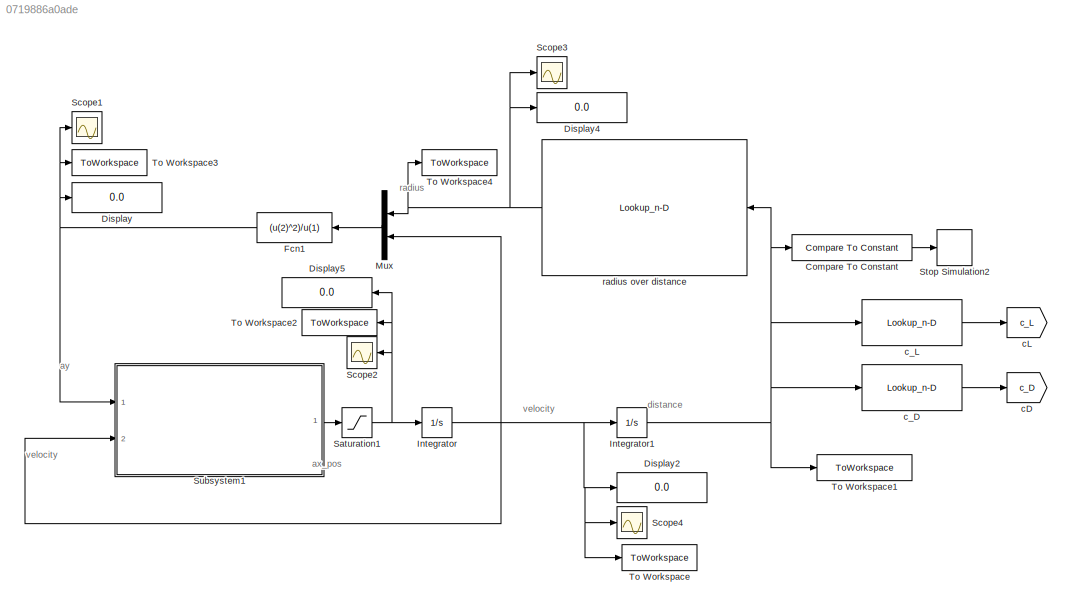
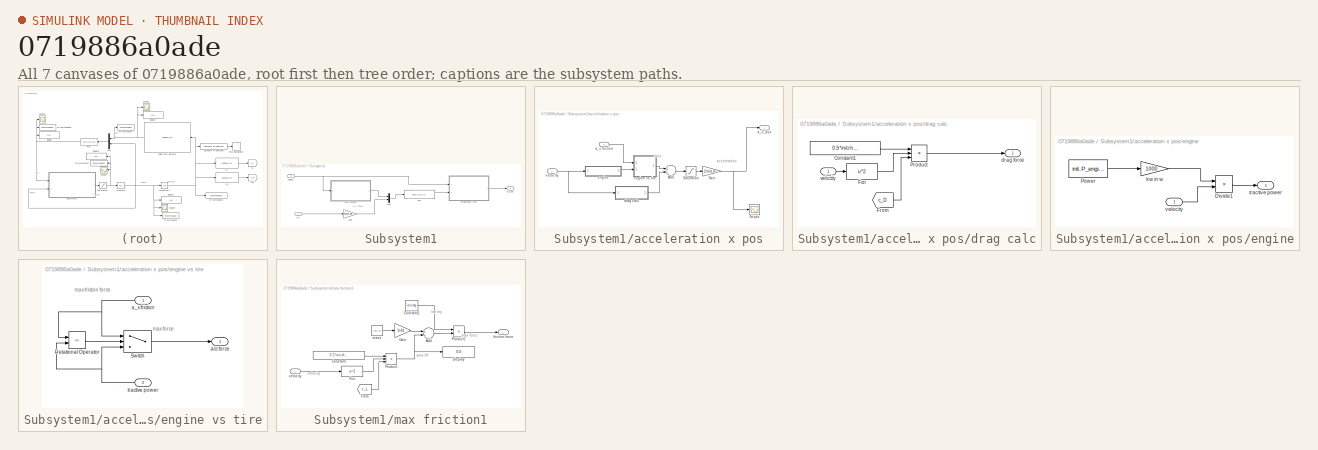
[diagram: thumbnail index - all 7 canvases of the model, root first then tree order]
MODEL slx_0719886a0ade
KIND model
CONFIG AbsTol = auto
CONFIG EnableMultiTasking = off
CONFIG FixedStep = 1e-3
CONFIG MaxStep = 1e-3
CONFIG MinStep = auto
CONFIG RelTol = 1e-3
CONFIG SampleTimeConstraint = Unconstrained
CONFIG Solver = VariableStepAuto
CONFIG SolverName = VariableStepAuto
CONFIG StartTime = 0
CONFIG StopTime = inf
BLOCK [Reference] Compare To Constant  REF=simulink/Logic and Bit
Operations/Compare
To Constant
  Ports = [1, 1]
  SourceBlock = simulink/Logic and Bit\nOperations/Compare\nTo Constant
  SourceProductBaseCode = SL
  SourceProductName = Simulink
  SourceType = Compare To Constant
BLOCK [Display] Display
  Decimation = 1
  Ports = [1]
BLOCK [Display] Display2
  Decimation = 1
  Ports = [1]
BLOCK [Display] Display4
  Decimation = 1
  Ports = [1]
BLOCK [Display] Display5
  Decimation = 1
  Ports = [1]
BLOCK [Fcn] Fcn1
  Expr = (u(2)^2)/u(1)
BLOCK [Integrator] Integrator
  InitialCondition = apexVelocity
  Ports = [1, 1]
BLOCK [Integrator] Integrator1
  InitialCondition = currentDistance
  Ports = [1, 1]
BLOCK [Mux] Mux
  DisplayOption = bar
  Inputs = 2
  Ports = [2, 1]
BLOCK [Saturate] Saturation1
  InputPortMap = u0
  LowerLimit = 0
  Ports = [1, 1]
  UpperLimit = inf
BLOCK [Scope] Scope1
  Floating = off
  NumInputPorts = 1
  Ports = [1]
  ScopeSpecificationString = Simulink.scopes.TimeScopeBlockCfg('CurrentConfiguration', extmgr.ConfigurationSet(extmgr.Configuration('Core','General UI',true),extmgr.Configuration('Core','Source UI',true),extmgr.Configuration('Sources','WiredSimulink',true,'DataLoggingVariableName','ScopeData1'),extmgr.Configuration('Visuals','Time Domain',true,'SerializedDisplays',{struct('MinYLimReal','1.69323','MaxYLimReal','18.93401','YLab...<+1396ch>
BLOCK [Scope] Scope2
  Floating = off
  NumInputPorts = 1
  Ports = [1]
  ScopeSpecificationString = Simulink.scopes.TimeScopeBlockCfg('CurrentConfiguration', extmgr.ConfigurationSet(extmgr.Configuration('Core','General UI',true),extmgr.Configuration('Core','Source UI',true),extmgr.Configuration('Sources','WiredSimulink',true,'DataLoggingVariableName','ScopeData2'),extmgr.Configuration('Visuals','Time Domain',true,'SerializedDisplays',{struct('MinYLimReal','-1.40269','MaxYLimReal','12.62424','YLa...<+1404ch>
BLOCK [Scope] Scope3
  Floating = off
  NumInputPorts = 1
  Ports = [1]
  ScopeSpecificationString = Simulink.scopes.TimeScopeBlockCfg('CurrentConfiguration', extmgr.ConfigurationSet(extmgr.Configuration('Core','General UI',true),extmgr.Configuration('Core','Source UI',true),extmgr.Configuration('Sources','WiredSimulink',true,'DataLoggingVariableName','ScopeData3'),extmgr.Configuration('Visuals','Time Domain',true,'SerializedDisplays',{struct('MinYLimReal','-2.6221','MaxYLimReal','29.95631','YLab...<+1432ch>
BLOCK [Scope] Scope4
  Floating = off
  NumInputPorts = 1
  Ports = [1]
  ScopeSpecificationString = Simulink.scopes.TimeScopeBlockCfg('CurrentConfiguration', extmgr.ConfigurationSet(extmgr.Configuration('Core','General UI',true),extmgr.Configuration('Core','Source UI',true),extmgr.Configuration('Sources','WiredSimulink',true,'DataLoggingVariableName','ScopeData4'),extmgr.Configuration('Visuals','Time Domain',true,'SerializedDisplays',{struct('MinYLimReal','9.96112','MaxYLimReal','10.34543','YLab...<+1399ch>
BLOCK [Stop] Stop Simulation2
BLOCK [SubSystem] Subsystem1
  Ports = [2, 1]
  RequestExecContextInheritance = off
BLOCK [Fcn] Subsystem1/Fcn
  Expr = sqrt((u(1)^2)-(u(2)^2))
BLOCK [Gain] Subsystem1/Gain
  Gain = init.m
  OutDataTypeStr = Inherit: Inherit via internal rule
  ParamDataTypeStr = Inherit: Inherit via internal rule
  SaturateOnIntegerOverflow = off
BLOCK [Mux] Subsystem1/Mux
  DisplayOption = bar
  Inputs = 2
  Ports = [2, 1]
BLOCK [Outport] Subsystem1/a_x_pos 
  IconDisplay = Port number
BLOCK [Inport] Subsystem1/a_y 
  IconDisplay = Port number
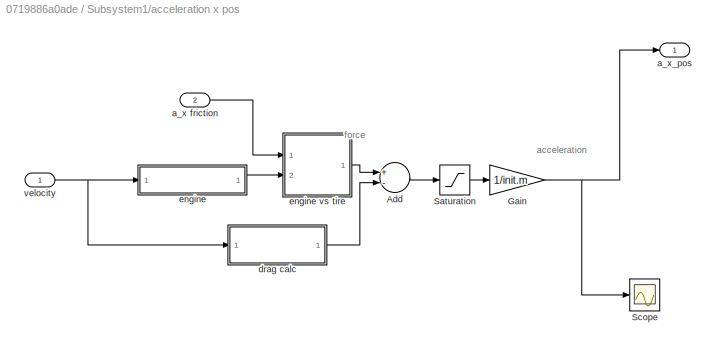
BLOCK [SubSystem] Subsystem1/acceleration x pos
  Ports = [2, 1]
  RequestExecContextInheritance = off
BLOCK [Sum] Subsystem1/acceleration x pos/Add
  InputSameDT = off
  Inputs = +-
  OutDataTypeStr = Inherit: Inherit via internal rule
  Ports = [2, 1]
  SaturateOnIntegerOverflow = off
BLOCK [Gain] Subsystem1/acceleration x pos/Gain
  Gain = 1/init.m
  OutDataTypeStr = Inherit: Inherit via internal rule
  ParamDataTypeStr = Inherit: Inherit via internal rule
  SaturateOnIntegerOverflow = off
BLOCK [Saturate] Subsystem1/acceleration x pos/Saturation
  InputPortMap = u0
  LowerLimit = 0
  Ports = [1, 1]
  UpperLimit = inf
BLOCK [Scope] Subsystem1/acceleration x pos/Scope
  Floating = off
  NumInputPorts = 1
  Ports = [1]
  ScopeSpecificationString = Simulink.scopes.TimeScopeBlockCfg('CurrentConfiguration', extmgr.ConfigurationSet(extmgr.Configuration('Core','General UI',true),extmgr.Configuration('Core','Source UI',true),extmgr.Configuration('Sources','WiredSimulink',true,'DataLoggingVariableName','ScopeData2'),extmgr.Configuration('Visuals','Time Domain',true,'SerializedDisplays',{struct('MinYLimReal','3.62183','MaxYLimReal','23.62183','YLab...<+1365ch>
BLOCK [Inport] Subsystem1/acceleration x pos/a_x friction
  IconDisplay = Port number
  Port = 2
BLOCK [Outport] Subsystem1/acceleration x pos/a_x_pos 
  IconDisplay = Port number
BLOCK [SubSystem] Subsystem1/acceleration x pos/drag calc
  Ports = [1, 1]
  RequestExecContextInheritance = off
BLOCK [Constant] Subsystem1/acceleration x pos/drag calc/Constant1
  Value = 0.5*init.rhoAir*init.ae_A
BLOCK [Fcn] Subsystem1/acceleration x pos/drag calc/Fcn
  Expr = u^2
BLOCK [From] Subsystem1/acceleration x pos/drag calc/From
  GotoTag = c_D
  TagVisibility = global
BLOCK [Product] Subsystem1/acceleration x pos/drag calc/Product
  InputSameDT = off
  Inputs = 3
  OutDataTypeStr = Inherit: Inherit via internal rule
  Ports = [3, 1]
  RndMeth = Floor
  SaturateOnIntegerOverflow = off
BLOCK [Outport] Subsystem1/acceleration x pos/drag calc/drag force 
  IconDisplay = Port number
BLOCK [Inport] Subsystem1/acceleration x pos/drag calc/velocity
  IconDisplay = Port number
BLOCK [SubSystem] Subsystem1/acceleration x pos/engine
  Ports = [1, 1]
  RequestExecContextInheritance = off
BLOCK [SubSystem] Subsystem1/acceleration x pos/engine vs tire
  Ports = [2, 1]
  RequestExecContextInheritance = off
BLOCK [RelationalOperator] Subsystem1/acceleration x pos/engine vs tire/Relational Operator
  InputSameDT = off
  Operator = <=
  OutDataTypeStr = boolean
  Ports = [2, 1]
  RndMeth = Simplest
BLOCK [Switch] Subsystem1/acceleration x pos/engine vs tire/Switch
  Criteria = u2 > Threshold
  InputSameDT = off
  SaturateOnIntegerOverflow = off
BLOCK [Inport] Subsystem1/acceleration x pos/engine vs tire/a_x friction 
  IconDisplay = Port number
BLOCK [Outport] Subsystem1/acceleration x pos/engine vs tire/acc force
  IconDisplay = Port number
BLOCK [Inport] Subsystem1/acceleration x pos/engine vs tire/tractive power
  IconDisplay = Port number
  Port = 2
BLOCK [Product] Subsystem1/acceleration x pos/engine/Divide1
  InputSameDT = off
  Inputs = */
  OutDataTypeStr = Inherit: Inherit via internal rule
  Ports = [2, 1]
  RndMeth = Floor
  SaturateOnIntegerOverflow = off
BLOCK [Constant] Subsystem1/acceleration x pos/engine/Power 
  Value = init.P_engine
BLOCK [Gain] Subsystem1/acceleration x pos/engine/kw in w 
  Gain = 1000
  OutDataTypeStr = Inherit: Inherit via internal rule
  ParamDataTypeStr = Inherit: Inherit via internal rule
  SaturateOnIntegerOverflow = off
BLOCK [Outport] Subsystem1/acceleration x pos/engine/tractive power
  IconDisplay = Port number
BLOCK [Inport] Subsystem1/acceleration x pos/engine/velocity
  IconDisplay = Port number
BLOCK [Inport] Subsystem1/acceleration x pos/velocity
  IconDisplay = Port number
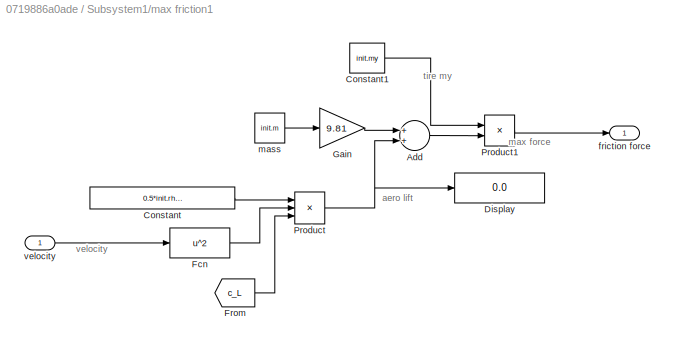
BLOCK [SubSystem] Subsystem1/max friction1
  Ports = [1, 1]
  RequestExecContextInheritance = off
BLOCK [Sum] Subsystem1/max friction1/Add
  InputSameDT = off
  OutDataTypeStr = Inherit: Inherit via internal rule
  Ports = [2, 1]
  SaturateOnIntegerOverflow = off
BLOCK [Constant] Subsystem1/max friction1/Constant
  Value = 0.5*init.rhoAir*init.ae_A
BLOCK [Constant] Subsystem1/max friction1/Constant1
  Value = init.my
BLOCK [Display] Subsystem1/max friction1/Display
  Decimation = 1
  Ports = [1]
BLOCK [Fcn] Subsystem1/max friction1/Fcn
  Expr = u^2
BLOCK [From] Subsystem1/max friction1/From
  GotoTag = c_L
  TagVisibility = global
BLOCK [Gain] Subsystem1/max friction1/Gain
  Gain = 9.81
  OutDataTypeStr = Inherit: Inherit via internal rule
  ParamDataTypeStr = Inherit: Inherit via internal rule
  SaturateOnIntegerOverflow = off
BLOCK [Product] Subsystem1/max friction1/Product
  InputSameDT = off
  Inputs = 3
  OutDataTypeStr = Inherit: Inherit via internal rule
  Ports = [3, 1]
  RndMeth = Floor
  SaturateOnIntegerOverflow = off
BLOCK [Product] Subsystem1/max friction1/Product1
  InputSameDT = off
  OutDataTypeStr = Inherit: Inherit via internal rule
  Ports = [2, 1]
  RndMeth = Floor
  SaturateOnIntegerOverflow = off
BLOCK [Outport] Subsystem1/max friction1/friction force
  IconDisplay = Port number
BLOCK [Constant] Subsystem1/max friction1/mass 
  Value = init.m
BLOCK [Inport] Subsystem1/max friction1/velocity
  IconDisplay = Port number
BLOCK [Inport] Subsystem1/velocity 
  IconDisplay = Port number
  Port = 2
BLOCK [ToWorkspace] To Workspace
  FixptAsFi = on
  MaxDataPoints = inf
  Ports = [1]
  SampleTime = -1
  VariableName = velocity
BLOCK [ToWorkspace] To Workspace1
  FixptAsFi = on
  MaxDataPoints = inf
  Ports = [1]
  SampleTime = -1
  VariableName = distance
BLOCK [ToWorkspace] To Workspace2
  FixptAsFi = on
  MaxDataPoints = inf
  Ports = [1]
  SampleTime = -1
  VariableName = a_x
BLOCK [ToWorkspace] To Workspace3
  FixptAsFi = on
  MaxDataPoints = inf
  Ports = [1]
  SampleTime = -1
  VariableName = a_y
BLOCK [ToWorkspace] To Workspace4
  FixptAsFi = on
  MaxDataPoints = inf
  Ports = [1]
  SampleTime = -1
  VariableName = radius
BLOCK [Goto] cD 
  GotoTag = c_D
  TagVisibility = global
BLOCK [Goto] cL 
  GotoTag = c_L
  TagVisibility = global
BLOCK [Lookup_n-D] c_D 
  BreakpointsForDimension1 = [0:init.ptDistance:(length(course)-1)*init.ptDistance]
  InternalRulePriority = Speed
  NumberOfTableDimensions = 1
  Ports = [1, 1]
  RndMeth = Simplest
  Table = aeroMap(:,2)
BLOCK [Lookup_n-D] c_L
  BreakpointsForDimension1 = [0:init.ptDistance:(length(course)-1)*init.ptDistance]
  InternalRulePriority = Speed
  NumberOfTableDimensions = 1
  Ports = [1, 1]
  RndMeth = Simplest
  Table = aeroMap(:,1)
BLOCK [Lookup_n-D] radius over distance
  BreakpointsForDimension1 = [0:init.ptDistance:(length(course)-1)*init.ptDistance]
  InternalRulePriority = Speed
  NumberOfTableDimensions = 1
  Ports = [1, 1]
  RndMeth = Simplest
  Table = course(:,3)
ANNOTATION (root): ax_pos
ANNOTATION (root): ay
ANNOTATION (root): distance
ANNOTATION (root): radius
ANNOTATION (root): velocity
ANNOTATION Subsystem1: a_y friction
ANNOTATION Subsystem1/acceleration x pos: acceleration
ANNOTATION Subsystem1/acceleration x pos: force
ANNOTATION Subsystem1/acceleration x pos/engine vs tire: max force
ANNOTATION Subsystem1/acceleration x pos/engine vs tire: max friction force
ANNOTATION Subsystem1/max friction1: aero lift
ANNOTATION Subsystem1/max friction1: max force
ANNOTATION Subsystem1/max friction1: tire my
ANNOTATION Subsystem1/max friction1: velocity
LINE Compare To Constant:1 -> Stop Simulation2:1
NET Fcn1:1 -> Display:1, Scope1:1, Subsystem1:1, To Workspace3:1
NET Integrator1:1 -> Compare To Constant:1, To Workspace1:1, c_D :1, c_L:1, radius over distance:1
NET Integrator:1 -> Display2:1, Integrator1:1, Mux:2, Scope4:1, Subsystem1:2, To Workspace:1
LINE Mux:1 -> Fcn1:1
NET Saturation1:1 -> Display5:1, Integrator:1, Scope2:1, To Workspace2:1
LINE Subsystem1/Fcn:1 -> Subsystem1/acceleration x pos:2
LINE Subsystem1/Gain:1 -> Subsystem1/Mux:2
LINE Subsystem1/Mux:1 -> Subsystem1/Fcn:1
LINE Subsystem1/a_y :1 -> Subsystem1/Gain:1
LINE Subsystem1/acceleration x pos/Add:1 -> Subsystem1/acceleration x pos/Saturation:1
NET Subsystem1/acceleration x pos/Gain:1 -> Subsystem1/acceleration x pos/Scope:1, Subsystem1/acceleration x pos/a_x_pos :1
LINE Subsystem1/acceleration x pos/Saturation:1 -> Subsystem1/acceleration x pos/Gain:1
LINE Subsystem1/acceleration x pos/a_x friction:1 -> Subsystem1/acceleration x pos/engine vs tire:1
LINE Subsystem1/acceleration x pos/drag calc/Constant1:1 -> Subsystem1/acceleration x pos/drag calc/Product:1
LINE Subsystem1/acceleration x pos/drag calc/Fcn:1 -> Subsystem1/acceleration x pos/drag calc/Product:2
LINE Subsystem1/acceleration x pos/drag calc/From:1 -> Subsystem1/acceleration x pos/drag calc/Product:3
LINE Subsystem1/acceleration x pos/drag calc/Product:1 -> Subsystem1/acceleration x pos/drag calc/drag force :1
LINE Subsystem1/acceleration x pos/drag calc/velocity:1 -> Subsystem1/acceleration x pos/drag calc/Fcn:1
LINE Subsystem1/acceleration x pos/drag calc:1 -> Subsystem1/acceleration x pos/Add:2
LINE Subsystem1/acceleration x pos/engine vs tire/Relational Operator:1 -> Subsystem1/acceleration x pos/engine vs tire/Switch:2
LINE Subsystem1/acceleration x pos/engine vs tire/Switch:1 -> Subsystem1/acceleration x pos/engine vs tire/acc force:1
NET Subsystem1/acceleration x pos/engine vs tire/a_x friction :1 -> Subsystem1/acceleration x pos/engine vs tire/Relational Operator:1, Subsystem1/acceleration x pos/engine vs tire/Switch:1
NET Subsystem1/acceleration x pos/engine vs tire/tractive power:1 -> Subsystem1/acceleration x pos/engine vs tire/Relational Operator:2, Subsystem1/acceleration x pos/engine vs tire/Switch:3
LINE Subsystem1/acceleration x pos/engine vs tire:1 -> Subsystem1/acceleration x pos/Add:1
LINE Subsystem1/acceleration x pos/engine/Divide1:1 -> Subsystem1/acceleration x pos/engine/tractive power:1
LINE Subsystem1/acceleration x pos/engine/Power :1 -> Subsystem1/acceleration x pos/engine/kw in w :1
LINE Subsystem1/acceleration x pos/engine/kw in w :1 -> Subsystem1/acceleration x pos/engine/Divide1:1
LINE Subsystem1/acceleration x pos/engine/velocity:1 -> Subsystem1/acceleration x pos/engine/Divide1:2
LINE Subsystem1/acceleration x pos/engine:1 -> Subsystem1/acceleration x pos/engine vs tire:2
NET Subsystem1/acceleration x pos/velocity:1 -> Subsystem1/acceleration x pos/drag calc:1, Subsystem1/acceleration x pos/engine:1
LINE Subsystem1/acceleration x pos:1 -> Subsystem1/a_x_pos :1
LINE Subsystem1/max friction1/Add:1 -> Subsystem1/max friction1/Product1:2
LINE Subsystem1/max friction1/Constant1:1 -> Subsystem1/max friction1/Product1:1
LINE Subsystem1/max friction1/Constant:1 -> Subsystem1/max friction1/Product:1
LINE Subsystem1/max friction1/Fcn:1 -> Subsystem1/max friction1/Product:2
LINE Subsystem1/max friction1/From:1 -> Subsystem1/max friction1/Product:3
LINE Subsystem1/max friction1/Gain:1 -> Subsystem1/max friction1/Add:1
LINE Subsystem1/max friction1/Product1:1 -> Subsystem1/max friction1/friction force:1
NET Subsystem1/max friction1/Product:1 -> Subsystem1/max friction1/Add:2, Subsystem1/max friction1/Display:1
LINE Subsystem1/max friction1/mass :1 -> Subsystem1/max friction1/Gain:1
LINE Subsystem1/max friction1/velocity:1 -> Subsystem1/max friction1/Fcn:1
LINE Subsystem1/max friction1:1 -> Subsystem1/Mux:1
NET Subsystem1/velocity :1 -> Subsystem1/acceleration x pos:1, Subsystem1/max friction1:1
LINE Subsystem1:1 -> Saturation1:1
LINE c_D :1 -> cD :1
LINE c_L:1 -> cL :1
NET radius over distance:1 -> Display4:1, Mux:1, Scope3:1, To Workspace4:1
note: NET lines group one-source signal fan-out (src -> all destinations, sorted); 1:1 wires keep LINE
